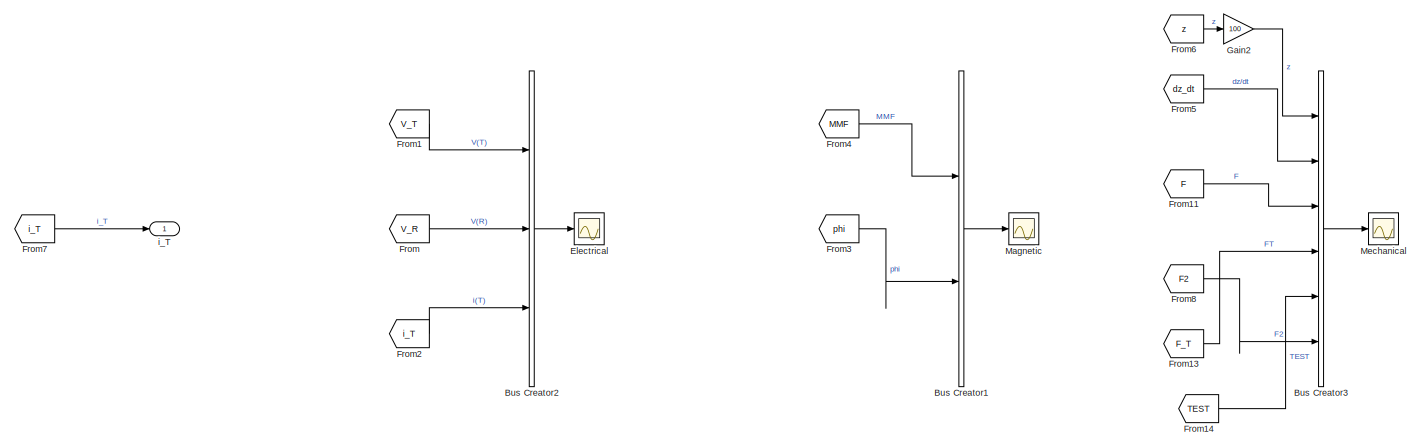
[diagram: root canvas - part 1/4, top left region]
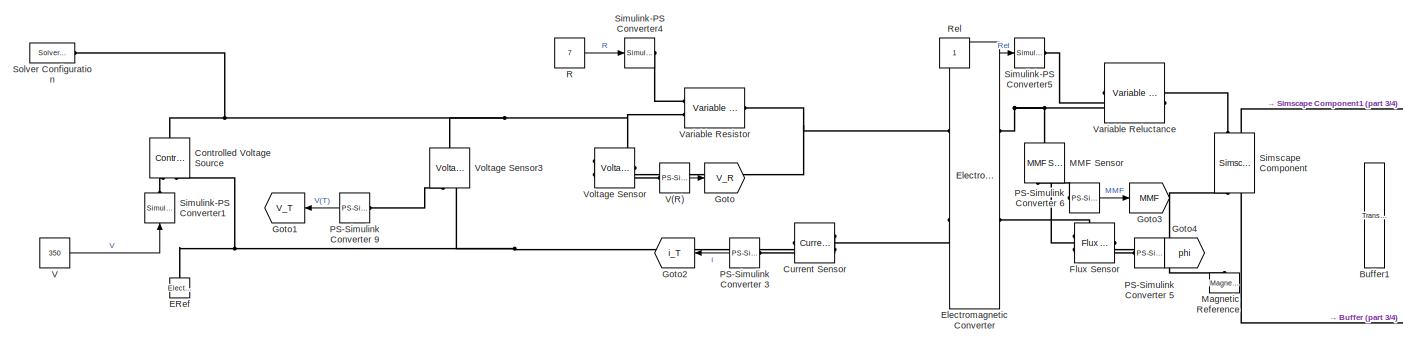
[diagram: root canvas - part 2/4, middle left region]
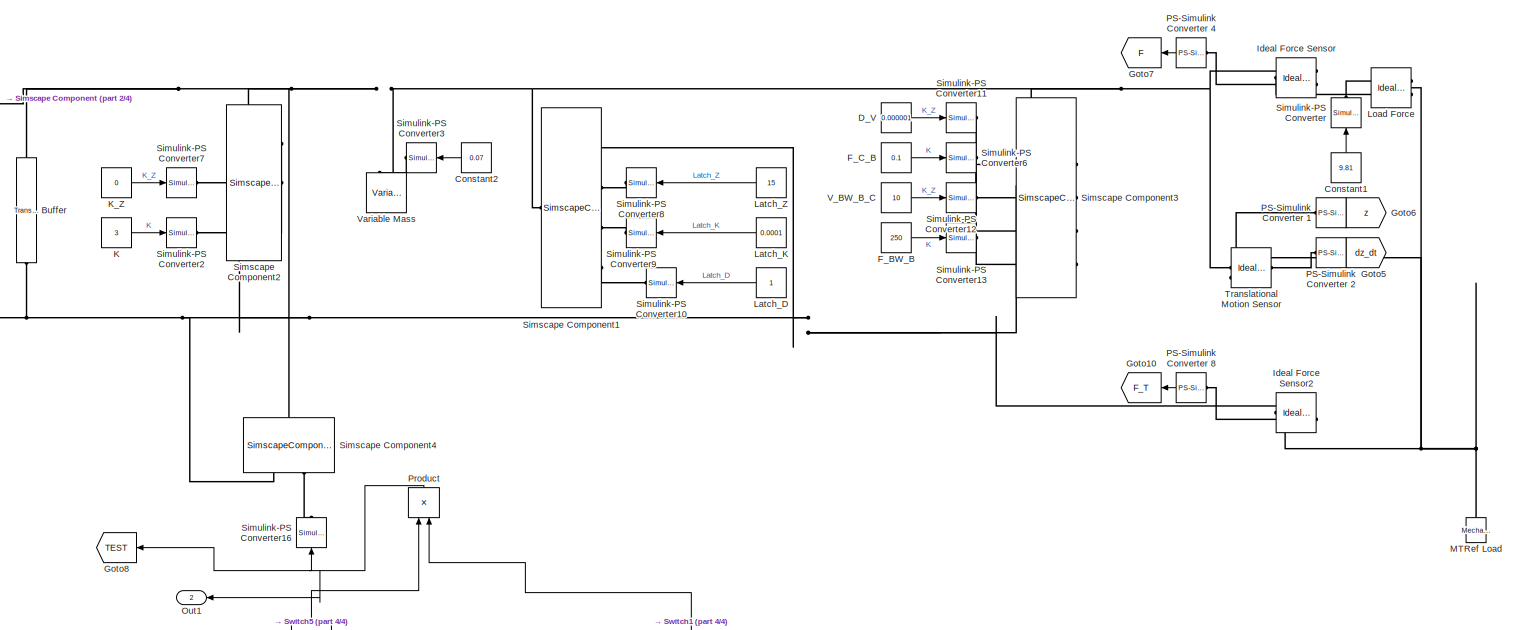
[diagram: root canvas - part 3/4, middle right region]
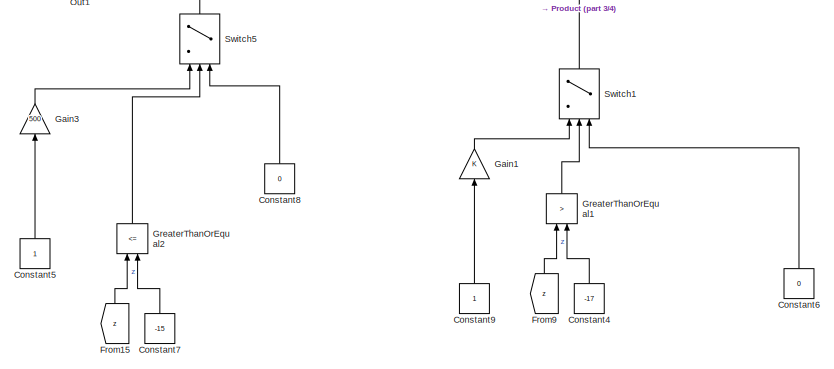
[diagram: root canvas - part 4/4, bottom center region]
MODEL slx_583ee01396c6
KIND model
CONFIG AbsTol = auto
CONFIG EnableMultiTasking = off
CONFIG FixedStep = 0.00001
CONFIG MaxStep = auto
CONFIG MinStep = auto
CONFIG RelTol = 1e-3
CONFIG SampleTimeConstraint = Unconstrained
CONFIG Solver = FixedStepAuto
CONFIG SolverName = FixedStepAuto
CONFIG StartTime = 0.0
CONFIG StopTime = 0.02
WORKSPACE source: mxarray member
WORKSPACE K_Spring = 3
WORKSPACE R = 7
WORKSPACE V = 350
WORKSPACE V_T: Simulink.Parameter (value not decoded)
BLOCK [Reference] Buffer  REF=fl_lib/Mechanical/Translational
Elements/Translational Hard
Stop
  NameLocation = left
  Ports = [0, 0, 0, 0, 0, 1, 1]
  SourceBlock = fl_lib/Mechanical/Translational\nElements/Translational Hard\nStop
  SourceProductBaseCode = SS
  SourceType = Translational Hard\nStop
BLOCK [Reference] Buffer1  REF=fl_lib/Mechanical/Translational
Elements/Translational Hard
Stop
  Commented = on
  NameLocation = left
  Ports = [0, 0, 0, 0, 0, 1, 1]
  SourceBlock = fl_lib/Mechanical/Translational\nElements/Translational Hard\nStop
  SourceProductBaseCode = SS
  SourceType = Translational Hard\nStop
BLOCK [BusCreator] Bus Creator1
  DisplayOption = bar
  InheritFromInputs = on
  Inputs = 2
  Ports = [2, 1]
BLOCK [BusCreator] Bus Creator2
  DisplayOption = bar
  InheritFromInputs = on
  Inputs = 3
  Ports = [3, 1]
BLOCK [BusCreator] Bus Creator3
  DisplayOption = bar
  InheritFromInputs = on
  Inputs = 6
  Ports = [6, 1]
BLOCK [Constant] Constant1
  NameLocation = right
  Value = 9.81
BLOCK [Constant] Constant2
  NameLocation = top
  Value = 0.07
BLOCK [Constant] Constant4
  NameLocation = right
  Value = -17
BLOCK [Constant] Constant5
  NameLocation = right
BLOCK [Constant] Constant6
  NameLocation = right
  Value = 0
BLOCK [Constant] Constant7
  NameLocation = right
  Value = -15
BLOCK [Constant] Constant8
  NameLocation = right
  Value = 0
BLOCK [Constant] Constant9
  NameLocation = right
BLOCK [Reference] Controlled Voltage Source  REF=fl_lib/Electrical/Electrical Sources/Controlled Voltage
Source
  NameLocation = right
  Ports = [0, 0, 0, 0, 0, 1, 2]
  SourceBlock = fl_lib/Electrical/Electrical Sources/Controlled Voltage\nSource
  SourceProductBaseCode = SS
  SourceType = Controlled Voltage\nSource
BLOCK [Reference] Current Sensor  REF=fl_lib/Electrical/Electrical Sensors/Current Sensor
  Ports = [0, 0, 0, 0, 0, 1, 2]
  SourceBlock = fl_lib/Electrical/Electrical Sensors/Current Sensor
  SourceProductBaseCode = SS
  SourceType = Current Sensor
BLOCK [Constant] D_V
  Commented = on
  NameLocation = left
  Value = 0.000001
BLOCK [Reference] ERef  REF=fl_lib/Electrical/Electrical Elements/Electrical Reference
  NameLocation = right
  Ports = [0, 0, 0, 0, 0, 1]
  SourceBlock = fl_lib/Electrical/Electrical Elements/Electrical Reference
  SourceProductBaseCode = SS
  SourceType = Electrical Reference
BLOCK [Scope] Electrical
  Floating = off
  NumInputPorts = 1
  Ports = [1]
  ScopeSpecificationString = Simulink.scopes.TimeScopeBlockCfg('CurrentConfiguration', extmgr.ConfigurationSet(extmgr.Configuration('Core','General UI',true,'FigureColor',[0.501960784313725 0.501960784313725 0.501960784313725]),extmgr.Configuration('Core','Source UI',true),extmgr.Configuration('Sources','WiredSimulink',true,'DataLoggingSaveFormat','StructureWithTime','DataLoggingDecimation','1','DataLoggingVariableName','Scop...<+2793ch>
  Tag = PublishScope
BLOCK [Reference] Electromagnetic Converter  REF=fl_lib/Magnetic/Magnetic Elements/Electromagnetic
Converter
  Ports = [0, 0, 0, 0, 0, 2, 2]
  SourceBlock = fl_lib/Magnetic/Magnetic Elements/Electromagnetic\nConverter
  SourceProductBaseCode = SS
  SourceType = Electromagnetic\nConverter
BLOCK [Constant] F_BW_B
  Commented = on
  NameLocation = left
  Value = 250
BLOCK [Constant] F_C_B
  Commented = on
  NameLocation = left
  Value = 0.1
BLOCK [Reference] Flux Sensor  REF=fl_lib/Magnetic/Magnetic Sensors/Flux Sensor
  Ports = [0, 0, 0, 0, 0, 1, 2]
  SourceBlock = fl_lib/Magnetic/Magnetic Sensors/Flux Sensor
  SourceProductBaseCode = SS
  SourceType = Flux Sensor
BLOCK [From] From
  GotoTag = V_R
BLOCK [From] From1
  GotoTag = V_T
BLOCK [From] From11
  GotoTag = F
BLOCK [From] From13
  GotoTag = F_T
BLOCK [From] From14
  GotoTag = TEST
BLOCK [From] From15
  GotoTag = z
  NameLocation = right
BLOCK [From] From2
  GotoTag = i_T
BLOCK [From] From3
  GotoTag = phi
BLOCK [From] From4
  GotoTag = MMF
BLOCK [From] From5
  GotoTag = dz_dt
BLOCK [From] From6
  GotoTag = z
BLOCK [From] From7
  GotoTag = i_T
BLOCK [From] From8
  GotoTag = F2
BLOCK [From] From9
  GotoTag = z
  NameLocation = right
BLOCK [Gain] Gain1
  NameLocation = right
BLOCK [Gain] Gain2
  Gain = 100
BLOCK [Gain] Gain3
  Gain = 500
  NameLocation = right
BLOCK [Goto] Goto
  GotoTag = V_R
BLOCK [Goto] Goto1
  GotoTag = V_T
  NameLocation = top
BLOCK [Goto] Goto10
  GotoTag = F_T
  NameLocation = top
BLOCK [Goto] Goto2
  GotoTag = i_T
  NameLocation = top
BLOCK [Goto] Goto3
  GotoTag = MMF
BLOCK [Goto] Goto4
  GotoTag = phi
BLOCK [Goto] Goto5
  GotoTag = dz_dt
BLOCK [Goto] Goto6
  GotoTag = z
BLOCK [Goto] Goto7
  GotoTag = F
  NameLocation = top
BLOCK [Goto] Goto8
  GotoTag = TEST
  NameLocation = top
BLOCK [RelationalOperator] GreaterThanOrEqual1
  InputSameDT = off
  NameLocation = right
  Operator = >
  OutDataTypeStr = boolean
  Ports = [2, 1]
  RndMeth = Simplest
  ZeroCross = off
BLOCK [RelationalOperator] GreaterThanOrEqual2
  InputSameDT = off
  NameLocation = right
  Operator = <=
  OutDataTypeStr = boolean
  Ports = [2, 1]
  RndMeth = Simplest
  ZeroCross = off
BLOCK [Reference] Ideal Force Sensor  REF=fl_lib/Mechanical/Mechanical Sensors/Ideal Force Sensor
  NameLocation = top
  Ports = [0, 0, 0, 0, 0, 1, 2]
  SourceBlock = fl_lib/Mechanical/Mechanical Sensors/Ideal Force Sensor
  SourceProductBaseCode = SS
  SourceType = Ideal Force Sensor
BLOCK [Reference] Ideal Force Sensor2  REF=fl_lib/Mechanical/Mechanical Sensors/Ideal Force Sensor
  NameLocation = top
  Ports = [0, 0, 0, 0, 0, 1, 2]
  SourceBlock = fl_lib/Mechanical/Mechanical Sensors/Ideal Force Sensor
  SourceProductBaseCode = SS
  SourceType = Ideal Force Sensor
BLOCK [Constant] K
  Commented = on
  Value = 3
BLOCK [Constant] K_Z
  Commented = on
  Value = 0
BLOCK [Constant] Latch_D
  Commented = on
BLOCK [Constant] Latch_K
  Commented = on
  Value = 0.0001
BLOCK [Constant] Latch_Z
  Commented = on
  Value = 15
BLOCK [Reference] Load Force  REF=fl_lib/Mechanical/Mechanical Sources/Ideal Force Source
  Ports = [0, 0, 0, 0, 0, 1, 2]
  SourceBlock = fl_lib/Mechanical/Mechanical Sources/Ideal Force Source
  SourceProductBaseCode = SS
  SourceType = Ideal Force Source
BLOCK [Reference] MMF Sensor  REF=fl_lib/Magnetic/Magnetic Sensors/MMF Sensor
  NameLocation = right
  Ports = [0, 0, 0, 0, 0, 1, 2]
  SourceBlock = fl_lib/Magnetic/Magnetic Sensors/MMF Sensor
  SourceProductBaseCode = SS
  SourceType = MMF Sensor
BLOCK [Reference] MTRef Load  REF=fl_lib/Mechanical/Translational
Elements/Mechanical
Translational
Reference
  NameLocation = left
  Ports = [0, 0, 0, 0, 0, 1]
  SourceBlock = fl_lib/Mechanical/Translational\nElements/Mechanical\nTranslational\nReference
  SourceProductBaseCode = SS
  SourceType = Mechanical\nTranslational\nReference
BLOCK [Scope] Magnetic
  Floating = off
  NumInputPorts = 1
  Ports = [1]
  ScopeSpecificationString = Simulink.scopes.TimeScopeBlockCfg('CurrentConfiguration', extmgr.ConfigurationSet(extmgr.Configuration('Core','General UI',true,'FigureColor',[0.501960784313725 0.501960784313725 0.501960784313725]),extmgr.Configuration('Core','Source UI',true),extmgr.Configuration('Sources','WiredSimulink',true,'DataLoggingSaveFormat','StructureWithTime','DataLoggingDecimation','1','DataLoggingVariableName','Scop...<+3043ch>
  Tag = PublishScope
BLOCK [Reference] Magnetic Reference  REF=fl_lib/Magnetic/Magnetic Elements/Magnetic Reference
  NameLocation = right
  Ports = [0, 0, 0, 0, 0, 1]
  SourceBlock = fl_lib/Magnetic/Magnetic Elements/Magnetic Reference
  SourceProductBaseCode = SS
  SourceType = Magnetic Reference
BLOCK [Scope] Mechanical
  Floating = off
  NumInputPorts = 1
  Ports = [1]
  ScopeSpecificationString = Simulink.scopes.TimeScopeBlockCfg('CurrentConfiguration', extmgr.ConfigurationSet(extmgr.Configuration('Core','General UI',true,'FigureColor',[0.501960784313725 0.501960784313725 0.501960784313725]),extmgr.Configuration('Core','Source UI',true),extmgr.Configuration('Sources','WiredSimulink',true,'DataLoggingSaveFormat','StructureWithTime','DataLoggingDecimation','1','DataLoggingVariableName','Scop...<+2724ch>
  Tag = PublishScope
BLOCK [Outport] Out1
  NameLocation = top
  Port = 2
BLOCK [Reference] PS-Simulink Converter 1  REF=nesl_utility/PS-Simulink
Converter
  Ports = [0, 1, 0, 0, 0, 1]
  SourceBlock = nesl_utility/PS-Simulink\nConverter
  SourceProductBaseCode = SS
  SourceType = PS-Simulink\nConverter
BLOCK [Reference] PS-Simulink Converter 2  REF=nesl_utility/PS-Simulink
Converter
  Ports = [0, 1, 0, 0, 0, 1]
  SourceBlock = nesl_utility/PS-Simulink\nConverter
  SourceProductBaseCode = SS
  SourceType = PS-Simulink\nConverter
BLOCK [Reference] PS-Simulink Converter 3  REF=nesl_utility/PS-Simulink
Converter
  NameLocation = top
  Ports = [0, 1, 0, 0, 0, 1]
  SourceBlock = nesl_utility/PS-Simulink\nConverter
  SourceProductBaseCode = SS
  SourceType = PS-Simulink\nConverter
BLOCK [Reference] PS-Simulink Converter 4  REF=nesl_utility/PS-Simulink
Converter
  NameLocation = top
  Ports = [0, 1, 0, 0, 0, 1]
  SourceBlock = nesl_utility/PS-Simulink\nConverter
  SourceProductBaseCode = SS
  SourceType = PS-Simulink\nConverter
BLOCK [Reference] PS-Simulink Converter 5  REF=nesl_utility/PS-Simulink
Converter
  Ports = [0, 1, 0, 0, 0, 1]
  SourceBlock = nesl_utility/PS-Simulink\nConverter
  SourceProductBaseCode = SS
  SourceType = PS-Simulink\nConverter
BLOCK [Reference] PS-Simulink Converter 6  REF=nesl_utility/PS-Simulink
Converter
  Ports = [0, 1, 0, 0, 0, 1]
  SourceBlock = nesl_utility/PS-Simulink\nConverter
  SourceProductBaseCode = SS
  SourceType = PS-Simulink\nConverter
BLOCK [Reference] PS-Simulink Converter 8  REF=nesl_utility/PS-Simulink
Converter
  NameLocation = top
  Ports = [0, 1, 0, 0, 0, 1]
  SourceBlock = nesl_utility/PS-Simulink\nConverter
  SourceProductBaseCode = SS
  SourceType = PS-Simulink\nConverter
BLOCK [Reference] PS-Simulink Converter 9  REF=nesl_utility/PS-Simulink
Converter
  NameLocation = top
  Ports = [0, 1, 0, 0, 0, 1]
  SourceBlock = nesl_utility/PS-Simulink\nConverter
  SourceProductBaseCode = SS
  SourceType = PS-Simulink\nConverter
BLOCK [Product] Product
  NameLocation = right
  Ports = [2, 1]
BLOCK [Constant] R
  Value = 7
BLOCK [Constant] Rel
BLOCK [SimscapeComponentBlock] Simscape Component
  CSA = 1.7671
  CSA_conf = compiletime
  CSA_unit = cm^2
  ClassName = reluctance_force_actuator_modified
  ComponentPath = reluctance_force_actuator_modified
  ComponentVariantNames = ["reluctance_force_actuator_modified"]
  ComponentVariants = ["reluctance_force_actuator_modified"]
  CopyFcn = simscape.engine.sli.internal.componentblockcallback(gcbh,'COPY')
  D_contact = 0.2
  D_contact_conf = compiletime
  D_contact_unit = s*N/mm
  InternalSimscapePortConfiguration = {"Bottom":[],"Left":[{"id":"N","label":"N","type":"foundation.magnetic.magnetic"},{"id":"R","label":"R","type":"foundation.mechanical.translational.translational"}],"Right":[{"id":"S","label":"S","type":"foundation.magnetic.magnetic"},{"id":"C","label":"C","type":"foundation.mechanical.translational.translational"}],"Top":[]}
  K_contact = 500
  K_contact_conf = compiletime
  K_contact_unit = N/mm
  MaskType = Reluctance Force Actuator
  NameLocation = left
  Ports = [0, 0, 0, 0, 0, 2, 2]
  PreCopyFcn = simscape.engine.sli.internal.componentblockcallback(gcbh,'PRECOPY')
  PreDeleteFcn = simscape.engine.sli.internal.componentblockcallback(gcbh,'PREDELETE')
  SchemaVersion = 1
  SourceFile = reluctance_force_actuator_modified
  f = 0
  f_nominal_specify = off
  f_nominal_unit = N
  f_nominal_value = 1
  f_priority = None
  f_specify = off
  f_unit = N
  mmf = 0
  mmf_nominal_specify = off
  mmf_nominal_unit = A
  mmf_nominal_value = 1
  mmf_priority = None
  mmf_specify = off
  mmf_unit = A
  mur = 1
  mur_conf = compiletime
  mur_unit = 1
  phi = 0
  phi_nominal_specify = off
  phi_nominal_unit = Wb
  phi_nominal_value = 1
  phi_priority = None
  phi_specify = off
  phi_unit = Wb
  u = 0
  u_nominal_specify = off
  u_nominal_unit = m/s
  u_nominal_value = 1
  u_priority = None
  u_specify = off
  u_unit = m/s
  x0 = 30
  x0_conf = compiletime
  x0_unit = mm
  xbffr = 1
  xbffr_conf = compiletime
  xbffr_unit = mm
BLOCK [SimscapeComponentBlock] Simscape Component1
  ClassName = mechanical_forces_from_reluctance_force_actuator
  Commented = on
  ComponentPath = mechanical_forces_from_reluctance_force_actuator
  ComponentVariantNames = ["mechanical_forces_from_reluctance_force_actuator"]
  ComponentVariants = ["mechanical_forces_from_reluctance_force_actuator"]
  CopyFcn = simscape.engine.sli.internal.componentblockcallback(gcbh,'COPY')
  InternalSimscapePortConfiguration = {"Bottom":[],"Left":[{"id":"R","label":"R","type":"foundation.mechanical.translational.translational"},{"id":"latch_loc","label":"Z","type":"input"},{"id":"K_latch","label":"K","type":"input"},{"id":"D_latch","label":"D","type":"input"}],"Right":[{"id":"C","label":"C","type":"foundation.mechanical.translational.translational"}],"Top":[]}
  MaskType = Mechanical Forces from Reluctance Force Actuator
  Ports = [0, 0, 0, 0, 0, 4, 1]
  PreCopyFcn = simscape.engine.sli.internal.componentblockcallback(gcbh,'PRECOPY')
  PreDeleteFcn = simscape.engine.sli.internal.componentblockcallback(gcbh,'PREDELETE')
  SchemaVersion = 1
  SourceFile = mechanical_forces_from_reluctance_force_actuator
  f = 0
  f_nominal_specify = off
  f_nominal_unit = N
  f_nominal_value = 1
  f_priority = None
  f_specify = off
  f_unit = N
  latch_dur = 1
  latch_dur_conf = compiletime
  latch_dur_unit = mm
  transition = 0.1
  transition_conf = compiletime
  transition_unit = mm
  v = 0
  v_nominal_specify = off
  v_nominal_unit = m/s
  v_nominal_value = 1
  v_priority = None
  v_specify = off
  v_unit = m/s
  x = 0
  x_nominal_specify = off
  x_nominal_unit = m
  x_nominal_value = 1
  x_priority = High
  x_specify = off
  x_unit = m
BLOCK [SimscapeComponentBlock] Simscape Component2
  ClassName = var_trans_spring_mod
  Commented = on
  ComponentPath = var_trans_spring_mod
  ComponentVariantNames = ["var_trans_spring_mod"]
  ComponentVariants = ["var_trans_spring_mod"]
  CopyFcn = simscape.engine.sli.internal.componentblockcallback(gcbh,'COPY')
  InternalSimscapePortConfiguration = {"Bottom":[],"Left":[{"id":"R","label":"R","type":"foundation.mechanical.translational.translational"}],"Right":[{"id":"K","label":"K","type":"input"},{"id":"Z","label":"Z","type":"input"},{"id":"C","label":"C","type":"foundation.mechanical.translational.translational"}],"Top":[]}
  Kmin = 1
  Kmin_conf = compiletime
  Kmin_unit = N/m
  MaskType = Variable Translational Spring
  NameLocation = top
  Ports = [0, 0, 0, 0, 0, 1, 3]
  PreCopyFcn = simscape.engine.sli.internal.componentblockcallback(gcbh,'PRECOPY')
  PreDeleteFcn = simscape.engine.sli.internal.componentblockcallback(gcbh,'PREDELETE')
  SchemaVersion = 1
  SourceFile = var_trans_spring_mod
BLOCK [SimscapeComponentBlock] Simscape Component3
  ClassName = friction_var
  Commented = on
  ComponentPath = friction_var
  ComponentVariantNames = ["friction_var"]
  ComponentVariants = ["friction_var"]
  CopyFcn = simscape.engine.sli.internal.componentblockcallback(gcbh,'COPY')
  InternalSimscapePortConfiguration = {"Bottom":[],"Left":[{"id":"R","label":"R","type":"foundation.mechanical.translational.translational"},{"id":"brkwy_frc","label":"F_BW_B","type":"input"},{"id":"brkwy_vel","label":"V_BW_B","type":"input"},{"id":"Col_frc","label":"F_C_B","type":"input"},{"id":"visc_coef","label":"D_V","type":"input"}],"Right":[{"id":"C","label":"C","type":"foundation.mechanical.translational.translational"}],"Top":...<+3ch>
  MaskType = Translational Friction Controllable
  Ports = [0, 0, 0, 0, 0, 5, 1]
  PreCopyFcn = simscape.engine.sli.internal.componentblockcallback(gcbh,'PRECOPY')
  PreDeleteFcn = simscape.engine.sli.internal.componentblockcallback(gcbh,'PREDELETE')
  SchemaVersion = 1
  SourceFile = friction_var
  f = 0
  f_nominal_specify = off
  f_nominal_unit = N
  f_nominal_value = 1
  f_priority = None
  f_specify = off
  f_unit = N
  v = 0
  v_nominal_specify = off
  v_nominal_unit = m/s
  v_nominal_value = 1
  v_priority = None
  v_specify = off
  v_unit = m/s
BLOCK [SimscapeComponentBlock] Simscape Component4
  ClassName = damper_mod
  ComponentPath = damper_mod
  ComponentVariantNames = ["damper_mod"]
  ComponentVariants = ["damper_mod"]
  CopyFcn = simscape.engine.sli.internal.componentblockcallback(gcbh,'COPY')
  InternalSimscapePortConfiguration = {"Bottom":[],"Left":[{"id":"R","label":"R","type":"foundation.mechanical.translational.translational"},{"id":"D","label":"Damping coefficient","type":"input"}],"Right":[{"id":"C","label":"C","type":"foundation.mechanical.translational.translational"}],"Top":[]}
  MaskType = Translational Damper
  NameLocation = right
  Ports = [0, 0, 0, 0, 0, 2, 1]
  PreCopyFcn = simscape.engine.sli.internal.componentblockcallback(gcbh,'PRECOPY')
  PreDeleteFcn = simscape.engine.sli.internal.componentblockcallback(gcbh,'PREDELETE')
  SchemaVersion = 1
  SourceFile = damper_mod
  f = 0
  f_nominal_specify = off
  f_nominal_unit = N
  f_nominal_value = 1
  f_priority = None
  f_specify = off
  f_unit = N
  v = 0
  v_nominal_specify = off
  v_nominal_unit = m/s
  v_nominal_value = 1
  v_priority = None
  v_specify = off
  v_unit = m/s
BLOCK [Reference] Simulink-PS Converter  REF=nesl_utility/Simulink-PS
Converter
  NameLocation = left
  Ports = [1, 0, 0, 0, 0, 0, 1]
  SourceBlock = nesl_utility/Simulink-PS\nConverter
  SourceProductBaseCode = SS
  SourceType = Simulink-PS\nConverter
BLOCK [Reference] Simulink-PS Converter1  REF=nesl_utility/Simulink-PS
Converter
  NameLocation = right
  Ports = [1, 0, 0, 0, 0, 0, 1]
  SourceBlock = nesl_utility/Simulink-PS\nConverter
  SourceProductBaseCode = SS
  SourceType = Simulink-PS\nConverter
BLOCK [Reference] Simulink-PS Converter10  REF=nesl_utility/Simulink-PS
Converter
  Commented = on
  NameLocation = top
  Ports = [1, 0, 0, 0, 0, 0, 1]
  SourceBlock = nesl_utility/Simulink-PS\nConverter
  SourceProductBaseCode = SS
  SourceType = Simulink-PS\nConverter
BLOCK [Reference] Simulink-PS Converter11  REF=nesl_utility/Simulink-PS
Converter
  Commented = on
  Ports = [1, 0, 0, 0, 0, 0, 1]
  SourceBlock = nesl_utility/Simulink-PS\nConverter
  SourceProductBaseCode = SS
  SourceType = Simulink-PS\nConverter
BLOCK [Reference] Simulink-PS Converter12  REF=nesl_utility/Simulink-PS
Converter
  Commented = on
  Ports = [1, 0, 0, 0, 0, 0, 1]
  SourceBlock = nesl_utility/Simulink-PS\nConverter
  SourceProductBaseCode = SS
  SourceType = Simulink-PS\nConverter
BLOCK [Reference] Simulink-PS Converter13  REF=nesl_utility/Simulink-PS
Converter
  Commented = on
  Ports = [1, 0, 0, 0, 0, 0, 1]
  SourceBlock = nesl_utility/Simulink-PS\nConverter
  SourceProductBaseCode = SS
  SourceType = Simulink-PS\nConverter
BLOCK [Reference] Simulink-PS Converter16  REF=nesl_utility/Simulink-PS
Converter
  NameLocation = left
  Ports = [1, 0, 0, 0, 0, 0, 1]
  SourceBlock = nesl_utility/Simulink-PS\nConverter
  SourceProductBaseCode = SS
  SourceType = Simulink-PS\nConverter
BLOCK [Reference] Simulink-PS Converter2  REF=nesl_utility/Simulink-PS
Converter
  Commented = on
  Ports = [1, 0, 0, 0, 0, 0, 1]
  SourceBlock = nesl_utility/Simulink-PS\nConverter
  SourceProductBaseCode = SS
  SourceType = Simulink-PS\nConverter
BLOCK [Reference] Simulink-PS Converter3  REF=nesl_utility/Simulink-PS
Converter
  NameLocation = top
  Ports = [1, 0, 0, 0, 0, 0, 1]
  SourceBlock = nesl_utility/Simulink-PS\nConverter
  SourceProductBaseCode = SS
  SourceType = Simulink-PS\nConverter
BLOCK [Reference] Simulink-PS Converter4  REF=nesl_utility/Simulink-PS
Converter
  Ports = [1, 0, 0, 0, 0, 0, 1]
  SourceBlock = nesl_utility/Simulink-PS\nConverter
  SourceProductBaseCode = SS
  SourceType = Simulink-PS\nConverter
BLOCK [Reference] Simulink-PS Converter5  REF=nesl_utility/Simulink-PS
Converter
  Ports = [1, 0, 0, 0, 0, 0, 1]
  SourceBlock = nesl_utility/Simulink-PS\nConverter
  SourceProductBaseCode = SS
  SourceType = Simulink-PS\nConverter
BLOCK [Reference] Simulink-PS Converter6  REF=nesl_utility/Simulink-PS
Converter
  Commented = on
  Ports = [1, 0, 0, 0, 0, 0, 1]
  SourceBlock = nesl_utility/Simulink-PS\nConverter
  SourceProductBaseCode = SS
  SourceType = Simulink-PS\nConverter
BLOCK [Reference] Simulink-PS Converter7  REF=nesl_utility/Simulink-PS
Converter
  Commented = on
  Ports = [1, 0, 0, 0, 0, 0, 1]
  SourceBlock = nesl_utility/Simulink-PS\nConverter
  SourceProductBaseCode = SS
  SourceType = Simulink-PS\nConverter
BLOCK [Reference] Simulink-PS Converter8  REF=nesl_utility/Simulink-PS
Converter
  Commented = on
  NameLocation = top
  Ports = [1, 0, 0, 0, 0, 0, 1]
  SourceBlock = nesl_utility/Simulink-PS\nConverter
  SourceProductBaseCode = SS
  SourceType = Simulink-PS\nConverter
BLOCK [Reference] Simulink-PS Converter9  REF=nesl_utility/Simulink-PS
Converter
  Commented = on
  NameLocation = top
  Ports = [1, 0, 0, 0, 0, 0, 1]
  SourceBlock = nesl_utility/Simulink-PS\nConverter
  SourceProductBaseCode = SS
  SourceType = Simulink-PS\nConverter
BLOCK [Reference] Solver Configuration  REF=nesl_utility/Solver
Configuration
  Ports = [0, 0, 0, 0, 0, 0, 1]
  SourceBlock = nesl_utility/Solver\nConfiguration
  SourceProductBaseCode = SS
  SourceType = Solver\nConfiguration
BLOCK [Switch] Switch1
  Criteria = u2 ~= 0
  InputSameDT = off
  NameLocation = right
  SaturateOnIntegerOverflow = off
  ZeroCross = off
BLOCK [Switch] Switch5
  Criteria = u2 ~= 0
  InputSameDT = off
  NameLocation = right
  SaturateOnIntegerOverflow = off
  ZeroCross = off
BLOCK [Reference] Translational Motion Sensor  REF=fl_lib/Mechanical/Mechanical Sensors/Ideal Translational
Motion Sensor
  NameLocation = top
  Ports = [0, 0, 0, 0, 0, 1, 3]
  SourceBlock = fl_lib/Mechanical/Mechanical Sensors/Ideal Translational\nMotion Sensor
  SourceProductBaseCode = SS
  SourceType = Ideal Translational\nMotion Sensor
BLOCK [Constant] V
  Value = 350
BLOCK [Reference] V(R)  REF=nesl_utility/PS-Simulink
Converter
  Ports = [0, 1, 0, 0, 0, 1]
  SourceBlock = nesl_utility/PS-Simulink\nConverter
  SourceProductBaseCode = SS
  SourceType = PS-Simulink\nConverter
BLOCK [Constant] V_BW_B_C
  Commented = on
  NameLocation = left
  Value = 10
BLOCK [Reference] Variable Mass  REF=sdl_lib/Inertias & Loads/Variable Mass
  NameLocation = right
  Ports = [0, 0, 0, 0, 0, 2]
  SourceBlock = sdl_lib/Inertias & Loads/Variable Mass
  SourceProductBaseCode = LD
  SourceType = Variable Mass
BLOCK [Reference] Variable Reluctance  REF=fl_lib/Magnetic/Magnetic Elements/Variable Reluctance
  Ports = [0, 0, 0, 0, 0, 2, 1]
  SourceBlock = fl_lib/Magnetic/Magnetic Elements/Variable Reluctance
  SourceProductBaseCode = SS
  SourceType = Variable Reluctance
BLOCK [Reference] Variable Resistor  REF=fl_lib/Electrical/Electrical Elements/Variable Resistor
  Ports = [0, 0, 0, 0, 0, 2, 1]
  SourceBlock = fl_lib/Electrical/Electrical Elements/Variable Resistor
  SourceProductBaseCode = SS
  SourceType = Variable Resistor
BLOCK [Reference] Voltage Sensor  REF=fl_lib/Electrical/Electrical Sensors/Voltage Sensor
  Ports = [0, 0, 0, 0, 0, 1, 2]
  SourceBlock = fl_lib/Electrical/Electrical Sensors/Voltage Sensor
  SourceProductBaseCode = SS
  SourceType = Voltage Sensor
BLOCK [Reference] Voltage Sensor3  REF=fl_lib/Electrical/Electrical Sensors/Voltage Sensor
  NameLocation = left
  Ports = [0, 0, 0, 0, 0, 1, 2]
  SourceBlock = fl_lib/Electrical/Electrical Sensors/Voltage Sensor
  SourceProductBaseCode = SS
  SourceType = Voltage Sensor
BLOCK [Outport] i_T
  SignalName = i_T
LINE Bus Creator1:1 -> Magnetic:1
LINE Bus Creator2:1 -> Electrical:1
LINE Bus Creator3:1 -> Mechanical:1
LINE Constant1:1 -> Simulink-PS Converter:1
LINE Constant2:1 -> Simulink-PS Converter3:1
LINE Constant4:1 -> GreaterThanOrEqual1:2
LINE Constant5:1 -> Gain3:1
LINE Constant6:1 -> Switch1:3
LINE Constant7:1 -> GreaterThanOrEqual2:2
LINE Constant8:1 -> Switch5:3
LINE Constant9:1 -> Gain1:1
LINE D_V:1 -> Simulink-PS Converter11:1
LINE F_BW_B:1 -> Simulink-PS Converter13:1
LINE F_C_B:1 -> Simulink-PS Converter6:1
LINE From11:1 -> Bus Creator3:3
LINE From13:1 -> Bus Creator3:4
LINE From14:1 -> Bus Creator3:5
LINE From15:1 -> GreaterThanOrEqual2:1
LINE From1:1 -> Bus Creator2:1
LINE From2:1 -> Bus Creator2:3
LINE From3:1 -> Bus Creator1:2
LINE From4:1 -> Bus Creator1:1
LINE From5:1 -> Bus Creator3:2
LINE From6:1 -> Gain2:1
LINE From7:1 -> i_T:1
LINE From8:1 -> Bus Creator3:6
LINE From9:1 -> GreaterThanOrEqual1:1
LINE From:1 -> Bus Creator2:2
LINE Gain1:1 -> Switch1:1
LINE Gain2:1 -> Bus Creator3:1
LINE Gain3:1 -> Switch5:1
LINE GreaterThanOrEqual1:1 -> Switch1:2
LINE GreaterThanOrEqual2:1 -> Switch5:2
LINE K:1 -> Simulink-PS Converter2:1
LINE K_Z:1 -> Simulink-PS Converter7:1
LINE Latch_D:1 -> Simulink-PS Converter10:1
LINE Latch_K:1 -> Simulink-PS Converter9:1
LINE Latch_Z:1 -> Simulink-PS Converter8:1
LINE PS-Simulink Converter 1:1 -> Goto6:1
LINE PS-Simulink Converter 2:1 -> Goto5:1
LINE PS-Simulink Converter 3:1 -> Goto2:1
LINE PS-Simulink Converter 4:1 -> Goto7:1
LINE PS-Simulink Converter 5:1 -> Goto4:1
LINE PS-Simulink Converter 6:1 -> Goto3:1
LINE PS-Simulink Converter 8:1 -> Goto10:1
LINE PS-Simulink Converter 9:1 -> Goto1:1
NET Product:1 -> Goto8:1, Out1:1, Simulink-PS Converter16:1
LINE R:1 -> Simulink-PS Converter4:1
LINE Rel:1 -> Simulink-PS Converter5:1
LINE Switch1:1 -> Product:2
LINE Switch5:1 -> Product:1
LINE V(R):1 -> Goto:1
LINE V:1 -> Simulink-PS Converter1:1
LINE V_BW_B_C:1 -> Simulink-PS Converter12:1
PNET net1: Buffer:LConn1 -- Ideal Force Sensor2:RConn1 -- Simscape Component1:LConn1 -- Simscape Component2:LConn1 -- Simscape Component3:LConn1 -- Simscape Component4:LConn1 -- Simscape Component:RConn2
PNET net2: Buffer:RConn1 -- Ideal Force Sensor:RConn1 -- Simscape Component1:RConn1 -- Simscape Component2:RConn3 -- Simscape Component3:RConn1 -- Simscape Component4:RConn1 -- Simscape Component:LConn2 -- Translational Motion Sensor:LConn1 -- Variable Mass:LConn2
PNET net3: Controlled Voltage Source:LConn1 -- Solver Configuration:RConn1 -- Variable Resistor:LConn2 -- Voltage Sensor3:LConn1 -- Voltage Sensor:LConn1
PLINE Controlled Voltage Source:RConn1 -- Simulink-PS Converter1:RConn1
PNET net4: Controlled Voltage Source:RConn2 -- Current Sensor:RConn2 -- ERef:LConn1 -- Voltage Sensor3:RConn2
PLINE Current Sensor:LConn1 -- Electromagnetic Converter:LConn2
PLINE Current Sensor:RConn1 -- PS-Simulink Converter 3:LConn1
PNET net5: Electromagnetic Converter:LConn1 -- Variable Resistor:RConn1 -- Voltage Sensor:RConn2
PNET net6: Electromagnetic Converter:RConn1 -- MMF Sensor:LConn1 -- Variable Reluctance:LConn1
PNET net7: Electromagnetic Converter:RConn2 -- Flux Sensor:LConn1 -- MMF Sensor:RConn2
PLINE Flux Sensor:RConn1 -- PS-Simulink Converter 5:LConn1
PNET net8: Flux Sensor:RConn2 -- Magnetic Reference:LConn1 -- Simscape Component:RConn1
PNET net9: Ideal Force Sensor2:LConn1 -- Load Force:LConn1 -- MTRef Load:LConn1 -- Translational Motion Sensor:RConn1
PLINE Ideal Force Sensor2:RConn2 -- PS-Simulink Converter 8:LConn1
PLINE Ideal Force Sensor:LConn1 -- Load Force:RConn2
PLINE Ideal Force Sensor:RConn2 -- PS-Simulink Converter 4:LConn1
PLINE Load Force:RConn1 -- Simulink-PS Converter:RConn1
PLINE MMF Sensor:RConn1 -- PS-Simulink Converter 6:LConn1
PLINE PS-Simulink Converter 1:LConn1 -- Translational Motion Sensor:RConn3
PLINE PS-Simulink Converter 2:LConn1 -- Translational Motion Sensor:RConn2
PLINE PS-Simulink Converter 9:LConn1 -- Voltage Sensor3:RConn1
PLINE Simscape Component1:LConn2 -- Simulink-PS Converter8:RConn1
PLINE Simscape Component1:LConn3 -- Simulink-PS Converter9:RConn1
PLINE Simscape Component1:LConn4 -- Simulink-PS Converter10:RConn1
PLINE Simscape Component2:RConn1 -- Simulink-PS Converter2:RConn1
PLINE Simscape Component2:RConn2 -- Simulink-PS Converter7:RConn1
PLINE Simscape Component3:LConn2 -- Simulink-PS Converter13:RConn1
PLINE Simscape Component3:LConn3 -- Simulink-PS Converter12:RConn1
PLINE Simscape Component3:LConn4 -- Simulink-PS Converter6:RConn1
PLINE Simscape Component3:LConn5 -- Simulink-PS Converter11:RConn1
PLINE Simscape Component4:LConn2 -- Simulink-PS Converter16:RConn1
PLINE Simscape Component:LConn1 -- Variable Reluctance:RConn1
PLINE Simulink-PS Converter3:RConn1 -- Variable Mass:LConn1
PLINE Simulink-PS Converter4:RConn1 -- Variable Resistor:LConn1
PLINE Simulink-PS Converter5:RConn1 -- Variable Reluctance:LConn2
PLINE V(R):LConn1 -- Voltage Sensor:RConn1
note: NET lines group one-source signal fan-out (src -> all destinations, sorted); 1:1 wires keep LINE; PNET lines group multi-terminal physical nets as a canonical sorted terminal list (undirected conserving connections); 2-terminal nets keep the pairwise PLINE form
